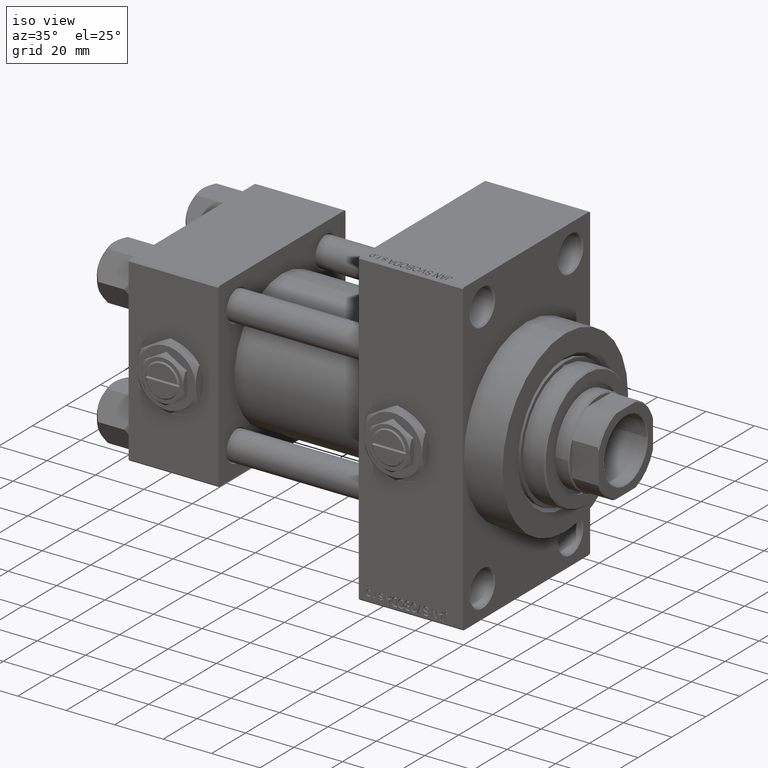
[diagram: clean part render]
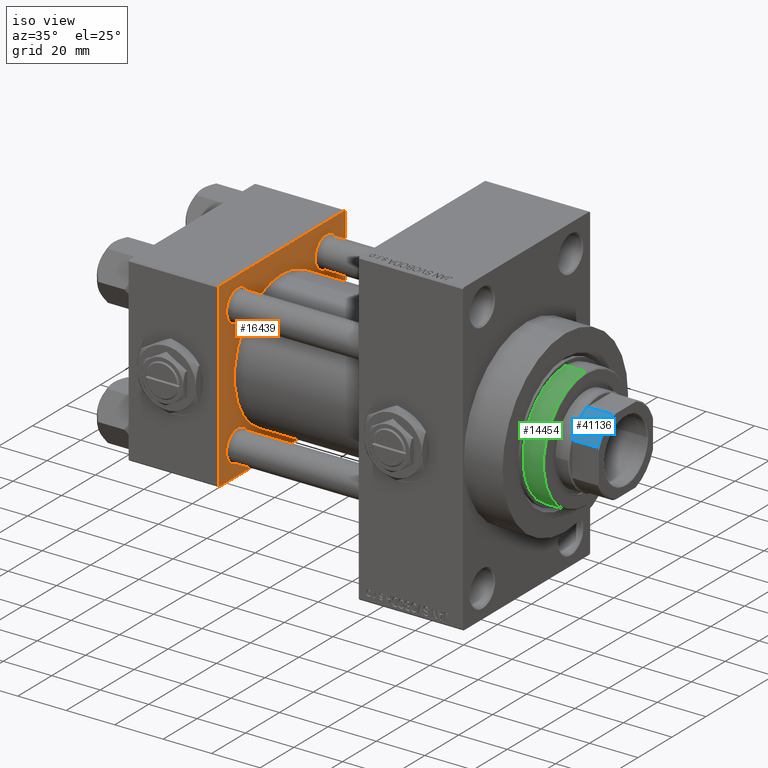
[diagram: same view with three faces highlighted in distinct colors, each labeled with its STEP entity id]
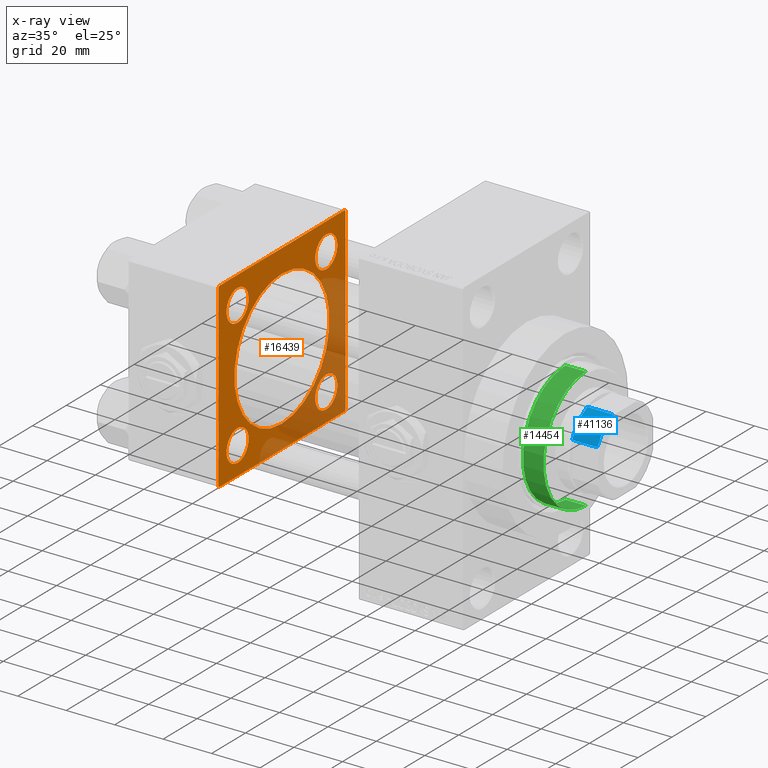
[diagram: x-ray of the same camera — body ghosted, the three highlighted faces saturated]
A machine part, iso view with three faces highlighted in distinct colors.
The next image is the same camera in x-ray (body ghosted, the three faces saturated) — at least one of them is partly hidden behind the body in this view.
Their STEP definitions:

[orange] entity #16439 — the highlighted planar face has unit normal (-1, 0, 0).
#188 = VECTOR ( 'NONE', #42562, 1000.000000000000114 ) ;
#349 = ORIENTED_EDGE ( 'NONE', *, *, #48649, .F. ) ;
#615 = CIRCLE ( 'NONE', #28632, 6.500000000000057732 ) ;
#841 = DIRECTION ( 'NONE',  ( 0.000000000000000000, 0.000000000000000000, -1.000000000000000000 ) ) ;
#1274 = VECTOR ( 'NONE', #2989, 1000.000000000000000 ) ;
#1501 = ORIENTED_EDGE ( 'NONE', *, *, #29821, .T. ) ;
#2338 = PLANE ( 'NONE',  #35518 ) ;
#2989 = DIRECTION ( 'NONE',  ( 0.000000000000000000, 0.7071067811865524577, -0.7071067811865426878 ) ) ;
#3256 = DIRECTION ( 'NONE',  ( 0.000000000000000000, 0.000000000000000000, 1.000000000000000000 ) ) ;
#3275 = EDGE_CURVE ( 'NONE', #8636, #25856, #7812, .T. ) ;
#3367 = AXIS2_PLACEMENT_3D ( 'NONE', #35919, #27649, #20608 ) ;
#3414 = CARTESIAN_POINT ( 'NONE',  ( 37.00000000000000000, -37.50000000000000711, 36.99999999999999289 ) ) ;
#3581 = EDGE_LOOP ( 'NONE', ( #37947, #5735 ) ) ;
#3976 = VERTEX_POINT ( 'NONE', #39563 ) ;
#4114 = AXIS2_PLACEMENT_3D ( 'NONE', #43243, #27953, #42992 ) ;
#4561 = VECTOR ( 'NONE', #26004, 1000.000000000000114 ) ;
#5201 = CARTESIAN_POINT ( 'NONE',  ( 37.00000000000000000, 26.14999999999999858, -19.65000000000000213 ) ) ;
#5233 = VERTEX_POINT ( 'NONE', #21932 ) ;
#5531 = DIRECTION ( 'NONE',  ( 0.000000000000000000, 0.000000000000000000, 1.000000000000000000 ) ) ;
#5735 = ORIENTED_EDGE ( 'NONE', *, *, #46528, .T. ) ;
#5844 = FACE_BOUND ( 'NONE', #29682, .T. ) ;
#5966 = EDGE_CURVE ( 'NONE', #44677, #3976, #18424, .T. ) ;
#6721 = VERTEX_POINT ( 'NONE', #44996 ) ;
#7447 = CARTESIAN_POINT ( 'NONE',  ( 37.00000000000000000, 37.49999999999999289, -36.99999999999998579 ) ) ;
#7812 = LINE ( 'NONE', #45657, #26301 ) ;
#7844 = VECTOR ( 'NONE', #841, 1000.000000000000000 ) ;
#8374 = ORIENTED_EDGE ( 'NONE', *, *, #15567, .T. ) ;
#8636 = VERTEX_POINT ( 'NONE', #3414 ) ;
#8877 = EDGE_CURVE ( 'NONE', #3976, #44677, #32141, .T. ) ;
#9349 = AXIS2_PLACEMENT_3D ( 'NONE', #38650, #15838, #16085 ) ;
#9375 = VERTEX_POINT ( 'NONE', #10285 ) ;
#9538 = DIRECTION ( 'NONE',  ( -1.000000000000000000, 0.000000000000000000, -0.000000000000000000 ) ) ;
#9742 = VERTEX_POINT ( 'NONE', #38458 ) ;
#9979 = EDGE_LOOP ( 'NONE', ( #8374, #25897 ) ) ;
#10285 = CARTESIAN_POINT ( 'NONE',  ( 37.00000000000000000, 36.99999999999997868, -37.50000000000000000 ) ) ;
#10391 = VECTOR ( 'NONE', #33431, 1000.000000000000000 ) ;
#10521 = EDGE_CURVE ( 'NONE', #16175, #42677, #13796, .T. ) ;
#10564 = CIRCLE ( 'NONE', #17757, 28.00000000000000000 ) ;
#11458 = CIRCLE ( 'NONE', #37858, 6.500000000000002665 ) ;
#11471 = DIRECTION ( 'NONE',  ( 0.000000000000000000, -1.000000000000000000, -9.251858538542972814E-17 ) ) ;
#11606 = ORIENTED_EDGE ( 'NONE', *, *, #33260, .F. ) ;
#11633 = LINE ( 'NONE', #30939, #7844 ) ;
#12046 = DIRECTION ( 'NONE',  ( 0.000000000000000000, 0.000000000000000000, 1.000000000000000000 ) ) ;
#13190 = CARTESIAN_POINT ( 'NONE',  ( 37.00000000000000000, 26.14999999999999858, 19.64999999999999858 ) ) ;
#13633 = LINE ( 'NONE', #21148, #10391 ) ;
#13796 = CIRCLE ( 'NONE', #20155, 6.500000000000057732 ) ;
#13882 = CARTESIAN_POINT ( 'NONE',  ( 37.00000000000000000, 0.000000000000000000, 0.000000000000000000 ) ) ;
#14261 = VECTOR ( 'NONE', #48582, 1000.000000000000114 ) ;
#15115 = EDGE_LOOP ( 'NONE', ( #45945, #16141 ) ) ;
#15567 = EDGE_CURVE ( 'NONE', #6721, #23777, #11458, .T. ) ;
#15633 = DIRECTION ( 'NONE',  ( 1.000000000000000000, -0.000000000000000000, 0.000000000000000000 ) ) ;
#15838 = DIRECTION ( 'NONE',  ( 1.000000000000000000, -0.000000000000000000, 0.000000000000000000 ) ) ;
#16085 = DIRECTION ( 'NONE',  ( 0.000000000000000000, 0.000000000000000000, 1.000000000000000000 ) ) ;
#16141 = ORIENTED_EDGE ( 'NONE', *, *, #8877, .T. ) ;
#16175 = VERTEX_POINT ( 'NONE', #36493 ) ;
#16439 = ADVANCED_FACE ( 'NONE', ( #40431, #28651, #44917, #21135, #5844, #48205 ), #2338, .F. ) ;
#16759 = EDGE_CURVE ( 'NONE', #35801, #47975, #49126, .T. ) ;
#16883 = ORIENTED_EDGE ( 'NONE', *, *, #10521, .T. ) ;
#17509 = CARTESIAN_POINT ( 'NONE',  ( 37.00000000000000000, -26.14999999999999147, -26.15000000000000924 ) ) ;
#17624 = DIRECTION ( 'NONE',  ( 0.000000000000000000, 0.000000000000000000, 1.000000000000000000 ) ) ;
#17757 = AXIS2_PLACEMENT_3D ( 'NONE', #41200, #15633, #26903 ) ;
#17850 = CARTESIAN_POINT ( 'NONE',  ( 37.00000000000000000, -26.14999999999999147, 19.64999999999994529 ) ) ;
#17922 = VERTEX_POINT ( 'NONE', #37607 ) ;
#18304 = CARTESIAN_POINT ( 'NONE',  ( 37.00000000000000000, -26.14999999999999147, 26.15000000000000924 ) ) ;
#18424 = CIRCLE ( 'NONE', #45609, 6.500000000000064837 ) ;
#18577 = CIRCLE ( 'NONE', #3367, 6.500000000000002665 ) ;
#19041 = DIRECTION ( 'NONE',  ( -1.000000000000000000, 0.000000000000000000, -0.000000000000000000 ) ) ;
#19785 = EDGE_LOOP ( 'NONE', ( #349, #21759, #11606, #1501, #42906, #39177, #26904, #23476 ) ) ;
#20155 = AXIS2_PLACEMENT_3D ( 'NONE', #17509, #32808, #48079 ) ;
#20264 = CARTESIAN_POINT ( 'NONE',  ( 37.00000000000000000, 26.14999999999999858, 32.65000000000001279 ) ) ;
#20365 = EDGE_LOOP ( 'NONE', ( #16883, #39001 ) ) ;
#20608 = DIRECTION ( 'NONE',  ( 0.000000000000000000, 0.000000000000000000, 1.000000000000000000 ) ) ;
#20773 = LINE ( 'NONE', #36079, #14261 ) ;
#21135 = FACE_BOUND ( 'NONE', #3581, .T. ) ;
#21148 = CARTESIAN_POINT ( 'NONE',  ( 37.00000000000000000, 37.49999999999999289, 37.50000000000000000 ) ) ;
#21759 = ORIENTED_EDGE ( 'NONE', *, *, #26109, .T. ) ;
#21932 = CARTESIAN_POINT ( 'NONE',  ( 37.00000000000000000, 37.49999999999999289, -36.99999999999998579 ) ) ;
#22704 = CARTESIAN_POINT ( 'NONE',  ( 37.00000000000000000, 36.99999999999999289, 37.50000000000000000 ) ) ;
#23476 = ORIENTED_EDGE ( 'NONE', *, *, #24792, .T. ) ;
#23777 = VERTEX_POINT ( 'NONE', #5201 ) ;
#24792 = EDGE_CURVE ( 'NONE', #25856, #17922, #28570, .T. ) ;
#25856 = VERTEX_POINT ( 'NONE', #45842 ) ;
#25897 = ORIENTED_EDGE ( 'NONE', *, *, #39085, .T. ) ;
#26004 = DIRECTION ( 'NONE',  ( -0.000000000000000000, 0.7071067811865474617, 0.7071067811865474617 ) ) ;
#26109 = EDGE_CURVE ( 'NONE', #9375, #5233, #38520, .T. ) ;
#26132 = ORIENTED_EDGE ( 'NONE', *, *, #26420, .F. ) ;
#26301 = VECTOR ( 'NONE', #30891, 1000.000000000000000 ) ;
#26420 = EDGE_CURVE ( 'NONE', #32673, #37801, #43763, .T. ) ;
#26903 = DIRECTION ( 'NONE',  ( 0.000000000000000000, 0.000000000000000000, 1.000000000000000000 ) ) ;
#26904 = ORIENTED_EDGE ( 'NONE', *, *, #3275, .T. ) ;
#27649 = DIRECTION ( 'NONE',  ( -1.000000000000000000, 0.000000000000000000, -0.000000000000000000 ) ) ;
#27953 = DIRECTION ( 'NONE',  ( -1.000000000000000000, 0.000000000000000000, -0.000000000000000000 ) ) ;
#28431 = ORIENTED_EDGE ( 'NONE', *, *, #46493, .F. ) ;
#28564 = CARTESIAN_POINT ( 'NONE',  ( 37.00000000000000000, 8.269258236473776482E-16, -28.00000000000000000 ) ) ;
#28570 = LINE ( 'NONE', #40093, #1274 ) ;
#28632 = AXIS2_PLACEMENT_3D ( 'NONE', #30307, #37573, #34321 ) ;
#28651 = FACE_BOUND ( 'NONE', #9979, .T. ) ;
#29162 = DIRECTION ( 'NONE',  ( -0.000000000000000000, 0.000000000000000000, 1.000000000000000000 ) ) ;
#29682 = EDGE_LOOP ( 'NONE', ( #28431, #26132 ) ) ;
#29821 = EDGE_CURVE ( 'NONE', #9742, #46219, #20773, .T. ) ;
#30307 = CARTESIAN_POINT ( 'NONE',  ( 37.00000000000000000, -26.14999999999999147, -26.15000000000000924 ) ) ;
#30463 = AXIS2_PLACEMENT_3D ( 'NONE', #43595, #47112, #12046 ) ;
#30520 = CARTESIAN_POINT ( 'NONE',  ( 37.00000000000000000, 37.49999999999999289, -37.50000000000000000 ) ) ;
#30891 = DIRECTION ( 'NONE',  ( 0.000000000000000000, 9.251858538542971581E-17, -1.000000000000000000 ) ) ;
#30939 = CARTESIAN_POINT ( 'NONE',  ( 37.00000000000000000, 37.49999999999999289, 37.50000000000000000 ) ) ;
#32141 = CIRCLE ( 'NONE', #4114, 6.500000000000064837 ) ;
#32673 = VERTEX_POINT ( 'NONE', #28564 ) ;
#32721 = EDGE_CURVE ( 'NONE', #42677, #16175, #615, .T. ) ;
#32808 = DIRECTION ( 'NONE',  ( -1.000000000000000000, 0.000000000000000000, -0.000000000000000000 ) ) ;
#33260 = EDGE_CURVE ( 'NONE', #9742, #5233, #11633, .T. ) ;
#33431 = DIRECTION ( 'NONE',  ( 0.000000000000000000, -1.000000000000000000, -9.251858538542971581E-17 ) ) ;
#34321 = DIRECTION ( 'NONE',  ( 0.000000000000000000, 0.000000000000000000, 1.000000000000000000 ) ) ;
#34572 = LINE ( 'NONE', #46318, #188 ) ;
#34972 = VERTEX_POINT ( 'NONE', #43272 ) ;
#35518 = AXIS2_PLACEMENT_3D ( 'NONE', #13882, #40922, #29162 ) ;
#35801 = VERTEX_POINT ( 'NONE', #13190 ) ;
#35919 = CARTESIAN_POINT ( 'NONE',  ( 37.00000000000000000, 26.14999999999999858, 26.15000000000000213 ) ) ;
#36079 = CARTESIAN_POINT ( 'NONE',  ( 37.00000000000000000, 36.99999999999999289, 37.50000000000000000 ) ) ;
#36493 = CARTESIAN_POINT ( 'NONE',  ( 37.00000000000000000, -26.14999999999999147, -32.65000000000006963 ) ) ;
#36623 = CARTESIAN_POINT ( 'NONE',  ( 37.00000000000000000, 26.14999999999999858, 26.15000000000000213 ) ) ;
#37573 = DIRECTION ( 'NONE',  ( -1.000000000000000000, 0.000000000000000000, -0.000000000000000000 ) ) ;
#37607 = CARTESIAN_POINT ( 'NONE',  ( 37.00000000000000000, -37.00000000000002132, -37.50000000000000711 ) ) ;
#37801 = VERTEX_POINT ( 'NONE', #46978 ) ;
#37858 = AXIS2_PLACEMENT_3D ( 'NONE', #43682, #47941, #17624 ) ;
#37870 = EDGE_CURVE ( 'NONE', #46219, #34972, #13633, .T. ) ;
#37947 = ORIENTED_EDGE ( 'NONE', *, *, #16759, .T. ) ;
#38458 = CARTESIAN_POINT ( 'NONE',  ( 37.00000000000000000, 37.49999999999999289, 37.00000000000000000 ) ) ;
#38520 = LINE ( 'NONE', #7447, #4561 ) ;
#38650 = CARTESIAN_POINT ( 'NONE',  ( 37.00000000000000000, -2.602085213965210642E-15, 0.000000000000000000 ) ) ;
#39001 = ORIENTED_EDGE ( 'NONE', *, *, #32721, .T. ) ;
#39085 = EDGE_CURVE ( 'NONE', #23777, #6721, #46445, .T. ) ;
#39177 = ORIENTED_EDGE ( 'NONE', *, *, #47262, .T. ) ;
#39563 = CARTESIAN_POINT ( 'NONE',  ( 37.00000000000000000, -26.14999999999999147, 32.65000000000007674 ) ) ;
#40093 = CARTESIAN_POINT ( 'NONE',  ( 37.00000000000000000, -37.00000000000002132, -37.50000000000000711 ) ) ;
#40431 = FACE_BOUND ( 'NONE', #20365, .T. ) ;
#40922 = DIRECTION ( 'NONE',  ( -1.000000000000000000, 0.000000000000000000, -0.000000000000000000 ) ) ;
#41200 = CARTESIAN_POINT ( 'NONE',  ( 37.00000000000000000, -2.602085213965210642E-15, 0.000000000000000000 ) ) ;
#42562 = DIRECTION ( 'NONE',  ( -0.000000000000000000, -0.7071067811865474617, -0.7071067811865474617 ) ) ;
#42677 = VERTEX_POINT ( 'NONE', #44074 ) ;
#42906 = ORIENTED_EDGE ( 'NONE', *, *, #37870, .T. ) ;
#42992 = DIRECTION ( 'NONE',  ( 0.000000000000000000, 0.000000000000000000, 1.000000000000000000 ) ) ;
#43243 = CARTESIAN_POINT ( 'NONE',  ( 37.00000000000000000, -26.14999999999999147, 26.15000000000000924 ) ) ;
#43272 = CARTESIAN_POINT ( 'NONE',  ( 37.00000000000000000, -37.00000000000000711, 37.49999999999999289 ) ) ;
#43595 = CARTESIAN_POINT ( 'NONE',  ( 37.00000000000000000, 26.14999999999999858, -26.15000000000000213 ) ) ;
#43682 = CARTESIAN_POINT ( 'NONE',  ( 37.00000000000000000, 26.14999999999999858, -26.15000000000000213 ) ) ;
#43763 = CIRCLE ( 'NONE', #9349, 28.00000000000000000 ) ;
#44074 = CARTESIAN_POINT ( 'NONE',  ( 37.00000000000000000, -26.14999999999999147, -19.64999999999995239 ) ) ;
#44303 = VECTOR ( 'NONE', #11471, 1000.000000000000000 ) ;
#44677 = VERTEX_POINT ( 'NONE', #17850 ) ;
#44917 = FACE_BOUND ( 'NONE', #15115, .T. ) ;
#44996 = CARTESIAN_POINT ( 'NONE',  ( 37.00000000000000000, 26.14999999999999858, -32.65000000000000568 ) ) ;
#45543 = LINE ( 'NONE', #30520, #44303 ) ;
#45609 = AXIS2_PLACEMENT_3D ( 'NONE', #18304, #19041, #3256 ) ;
#45657 = CARTESIAN_POINT ( 'NONE',  ( 37.00000000000000000, -37.50000000000000711, 37.49999999999999289 ) ) ;
#45842 = CARTESIAN_POINT ( 'NONE',  ( 37.00000000000000000, -37.50000000000000000, -37.00000000000003553 ) ) ;
#45900 = AXIS2_PLACEMENT_3D ( 'NONE', #36623, #9538, #5531 ) ;
#45945 = ORIENTED_EDGE ( 'NONE', *, *, #5966, .T. ) ;
#46219 = VERTEX_POINT ( 'NONE', #22704 ) ;
#46318 = CARTESIAN_POINT ( 'NONE',  ( 37.00000000000000000, -37.50000000000000711, 36.99999999999999289 ) ) ;
#46445 = CIRCLE ( 'NONE', #30463, 6.500000000000002665 ) ;
#46493 = EDGE_CURVE ( 'NONE', #37801, #32673, #10564, .T. ) ;
#46528 = EDGE_CURVE ( 'NONE', #47975, #35801, #18577, .T. ) ;
#46978 = CARTESIAN_POINT ( 'NONE',  ( 37.00000000000000000, -2.602085213965210642E-15, 28.00000000000000000 ) ) ;
#47112 = DIRECTION ( 'NONE',  ( -1.000000000000000000, 0.000000000000000000, -0.000000000000000000 ) ) ;
#47262 = EDGE_CURVE ( 'NONE', #34972, #8636, #34572, .T. ) ;
#47941 = DIRECTION ( 'NONE',  ( -1.000000000000000000, 0.000000000000000000, -0.000000000000000000 ) ) ;
#47975 = VERTEX_POINT ( 'NONE', #20264 ) ;
#48079 = DIRECTION ( 'NONE',  ( 0.000000000000000000, 0.000000000000000000, 1.000000000000000000 ) ) ;
#48205 = FACE_OUTER_BOUND ( 'NONE', #19785, .T. ) ;
#48582 = DIRECTION ( 'NONE',  ( 0.000000000000000000, -0.7071067811865474617, 0.7071067811865474617 ) ) ;
#48649 = EDGE_CURVE ( 'NONE', #9375, #17922, #45543, .T. ) ;
#49126 = CIRCLE ( 'NONE', #45900, 6.500000000000002665 ) ;

[blue] entity #41136 — the highlighted cylindrical surface (partial cylindrical patch) has radius 17.5 mm, axis along (1, 0, 0).
#785 = EDGE_CURVE ( 'NONE', #47036, #20100, #41273, .T. ) ;
#3090 = VERTEX_POINT ( 'NONE', #12871 ) ;
#3102 = EDGE_CURVE ( 'NONE', #42760, #47036, #34337, .T. ) ;
#3118 = AXIS2_PLACEMENT_3D ( 'NONE', #43452, #28898, #5585 ) ;
#4753 = CARTESIAN_POINT ( 'NONE',  ( 7.088723439378915359, -16.00000000000000000, 131.0000000000000284 ) ) ;
#4778 = FACE_OUTER_BOUND ( 'NONE', #49270, .T. ) ;
#5506 = CARTESIAN_POINT ( 'NONE',  ( 15.99999999999999645, -7.088723439378925129, 131.0000000000000284 ) ) ;
#5585 = DIRECTION ( 'NONE',  ( 1.000000000000000000, 0.000000000000000000, 0.000000000000000000 ) ) ;
#8035 = DIRECTION ( 'NONE',  ( 1.000000000000000000, 0.000000000000000000, 0.000000000000000000 ) ) ;
#8909 = CARTESIAN_POINT ( 'NONE',  ( 7.088723439378915359, -16.00000000000000000, -0.001000000000001000089 ) ) ;
#9122 = CIRCLE ( 'NONE', #35548, 17.50000000000000000 ) ;
#9186 = DIRECTION ( 'NONE',  ( 1.000000000000000000, 0.000000000000000000, 0.000000000000000000 ) ) ;
#10241 = VECTOR ( 'NONE', #37518, 1000.000000000000000 ) ;
#12347 = ORIENTED_EDGE ( 'NONE', *, *, #24178, .F. ) ;
#12871 = CARTESIAN_POINT ( 'NONE',  ( 7.088723439378915359, -16.00000000000000000, 141.5000000000000284 ) ) ;
#14217 = CARTESIAN_POINT ( 'NONE',  ( 15.99999999999999645, -7.088723439378925129, -0.001000000000001000089 ) ) ;
#14629 = ORIENTED_EDGE ( 'NONE', *, *, #785, .T. ) ;
#17203 = DIRECTION ( 'NONE',  ( -0.000000000000000000, -0.000000000000000000, -1.000000000000000000 ) ) ;
#17436 = EDGE_CURVE ( 'NONE', #20100, #3090, #9122, .T. ) ;
#19390 = ORIENTED_EDGE ( 'NONE', *, *, #3102, .T. ) ;
#20100 = VERTEX_POINT ( 'NONE', #28762 ) ;
#22874 = VECTOR ( 'NONE', #35981, 1000.000000000000000 ) ;
#24178 = EDGE_CURVE ( 'NONE', #42760, #3090, #35745, .T. ) ;
#25694 = AXIS2_PLACEMENT_3D ( 'NONE', #35371, #42369, #8035 ) ;
#28762 = CARTESIAN_POINT ( 'NONE',  ( 15.99999999999999645, -7.088723439378925129, 141.5000000000000284 ) ) ;
#28898 = DIRECTION ( 'NONE',  ( 0.000000000000000000, 0.000000000000000000, 1.000000000000000000 ) ) ;
#32748 = CARTESIAN_POINT ( 'NONE',  ( 0.000000000000000000, 0.000000000000000000, 141.5000000000000284 ) ) ;
#34337 = CIRCLE ( 'NONE', #3118, 17.50000000000003908 ) ;
#35371 = CARTESIAN_POINT ( 'NONE',  ( 0.000000000000000000, 0.000000000000000000, -0.001000000000001000089 ) ) ;
#35548 = AXIS2_PLACEMENT_3D ( 'NONE', #32748, #17203, #9186 ) ;
#35745 = LINE ( 'NONE', #8909, #22874 ) ;
#35981 = DIRECTION ( 'NONE',  ( -0.000000000000000000, -0.000000000000000000, 1.000000000000000000 ) ) ;
#37518 = DIRECTION ( 'NONE',  ( -0.000000000000000000, -0.000000000000000000, 1.000000000000000000 ) ) ;
#40932 = ORIENTED_EDGE ( 'NONE', *, *, #17436, .T. ) ;
#41136 = ADVANCED_FACE ( 'NONE', ( #4778 ), #46130, .T. ) ;
#41273 = LINE ( 'NONE', #14217, #10241 ) ;
#42369 = DIRECTION ( 'NONE',  ( -0.000000000000000000, -0.000000000000000000, 1.000000000000000000 ) ) ;
#42760 = VERTEX_POINT ( 'NONE', #4753 ) ;
#43452 = CARTESIAN_POINT ( 'NONE',  ( 0.000000000000000000, 0.000000000000000000, 131.0000000000000000 ) ) ;
#46130 = CYLINDRICAL_SURFACE ( 'NONE', #25694, 17.50000000000000000 ) ;
#47036 = VERTEX_POINT ( 'NONE', #5506 ) ;
#49270 = EDGE_LOOP ( 'NONE', ( #14629, #40932, #12347, #19390 ) ) ;

[green] entity #14454 — the highlighted cylindrical surface (partial cylindrical patch) has radius 25 mm, axis along (-1, 0, 0).
#2265 = DIRECTION ( 'NONE',  ( 1.000000000000000000, 0.000000000000000000, 0.000000000000000000 ) ) ;
#8185 = DIRECTION ( 'NONE',  ( -1.000000000000000000, 0.000000000000000000, 0.000000000000000000 ) ) ;
#8366 = CARTESIAN_POINT ( 'NONE',  ( -24.96969696969697239, 1.230541848742236155, 43.25999999999999801 ) ) ;
#8432 = DIRECTION ( 'NONE',  ( -0.000000000000000000, -0.000000000000000000, -1.000000000000000000 ) ) ;
#8658 = DIRECTION ( 'NONE',  ( 1.000000000000000000, 0.000000000000000000, 0.000000000000000000 ) ) ;
#8782 = VECTOR ( 'NONE', #24589, 1000.000000000000000 ) ;
#8995 = EDGE_CURVE ( 'NONE', #28616, #23659, #31362, .T. ) ;
#10112 = VERTEX_POINT ( 'NONE', #24581 ) ;
#11785 = VERTEX_POINT ( 'NONE', #32503 ) ;
#12860 = DIRECTION ( 'NONE',  ( 1.000000000000000000, 0.000000000000000000, 0.000000000000000000 ) ) ;
#13403 = CARTESIAN_POINT ( 'NONE',  ( 0.000000000000000000, 0.000000000000000000, 43.25999999999999801 ) ) ;
#13826 = AXIS2_PLACEMENT_3D ( 'NONE', #34464, #25942, #23154 ) ;
#13924 = ORIENTED_EDGE ( 'NONE', *, *, #8995, .T. ) ;
#14454 = ADVANCED_FACE ( 'NONE', ( #47014 ), #42512, .T. ) ;
#15011 = DIRECTION ( 'NONE',  ( -0.000000000000000000, -0.000000000000000000, -1.000000000000000000 ) ) ;
#15335 = EDGE_CURVE ( 'NONE', #43004, #26405, #29029, .T. ) ;
#15655 = ORIENTED_EDGE ( 'NONE', *, *, #31644, .T. ) ;
#16587 = VECTOR ( 'NONE', #15011, 1000.000000000000000 ) ;
#18120 = ORIENTED_EDGE ( 'NONE', *, *, #37282, .F. ) ;
#19265 = CARTESIAN_POINT ( 'NONE',  ( 25.00000000000000000, 3.061616997868383043E-15, 52.25999999999999801 ) ) ;
#19637 = ORIENTED_EDGE ( 'NONE', *, *, #20643, .T. ) ;
#20643 = EDGE_CURVE ( 'NONE', #26405, #28616, #22848, .T. ) ;
#20927 = AXIS2_PLACEMENT_3D ( 'NONE', #13403, #35977, #8658 ) ;
#22392 = ORIENTED_EDGE ( 'NONE', *, *, #15335, .T. ) ;
#22848 = CIRCLE ( 'NONE', #29268, 25.00000000000000000 ) ;
#22999 = CARTESIAN_POINT ( 'NONE',  ( -25.00000000000000000, 0.000000000000000000, 43.25999999999999801 ) ) ;
#23154 = DIRECTION ( 'NONE',  ( 1.000000000000000000, 0.000000000000000000, 0.000000000000000000 ) ) ;
#23638 = DIRECTION ( 'NONE',  ( 0.000000000000000000, 0.000000000000000000, 1.000000000000000000 ) ) ;
#23659 = VERTEX_POINT ( 'NONE', #22999 ) ;
#24581 = CARTESIAN_POINT ( 'NONE',  ( -25.00000000000000000, 0.000000000000000000, 51.76000000000001222 ) ) ;
#24589 = DIRECTION ( 'NONE',  ( -0.000000000000000000, -0.000000000000000000, -1.000000000000000000 ) ) ;
#25752 = EDGE_CURVE ( 'NONE', #10112, #11785, #46131, .T. ) ;
#25942 = DIRECTION ( 'NONE',  ( 0.000000000000000000, 0.000000000000000000, 1.000000000000000000 ) ) ;
#26134 = AXIS2_PLACEMENT_3D ( 'NONE', #36610, #29330, #2265 ) ;
#26405 = VERTEX_POINT ( 'NONE', #34903 ) ;
#26620 = AXIS2_PLACEMENT_3D ( 'NONE', #35014, #8432, #8185 ) ;
#26695 = EDGE_LOOP ( 'NONE', ( #40630, #15655, #22392, #19637, #13924, #18120 ) ) ;
#28616 = VERTEX_POINT ( 'NONE', #8366 ) ;
#29029 = CIRCLE ( 'NONE', #13826, 25.00000000000000000 ) ;
#29268 = AXIS2_PLACEMENT_3D ( 'NONE', #32164, #23638, #12860 ) ;
#29330 = DIRECTION ( 'NONE',  ( 0.000000000000000000, 0.000000000000000000, -1.000000000000000000 ) ) ;
#31362 = CIRCLE ( 'NONE', #20927, 25.00000000000000000 ) ;
#31644 = EDGE_CURVE ( 'NONE', #11785, #43004, #37826, .T. ) ;
#32164 = CARTESIAN_POINT ( 'NONE',  ( 0.000000000000000000, 0.000000000000000000, 43.25999999999999801 ) ) ;
#32503 = CARTESIAN_POINT ( 'NONE',  ( 25.00000000000000000, 3.061616997868383043E-15, 51.76000000000001222 ) ) ;
#33499 = CARTESIAN_POINT ( 'NONE',  ( 25.00000000000000000, 3.061616997868383043E-15, 43.25999999999999801 ) ) ;
#34464 = CARTESIAN_POINT ( 'NONE',  ( 0.000000000000000000, 0.000000000000000000, 43.25999999999999801 ) ) ;
#34903 = CARTESIAN_POINT ( 'NONE',  ( 24.96969696969697239, 1.230541848742238376, 43.25999999999999801 ) ) ;
#35014 = CARTESIAN_POINT ( 'NONE',  ( 0.000000000000000000, 0.000000000000000000, 52.25999999999999801 ) ) ;
#35977 = DIRECTION ( 'NONE',  ( 0.000000000000000000, 0.000000000000000000, 1.000000000000000000 ) ) ;
#36610 = CARTESIAN_POINT ( 'NONE',  ( 0.000000000000000000, 0.000000000000000000, 51.76000000000001222 ) ) ;
#37282 = EDGE_CURVE ( 'NONE', #10112, #23659, #48394, .T. ) ;
#37826 = LINE ( 'NONE', #19265, #16587 ) ;
#40379 = CARTESIAN_POINT ( 'NONE',  ( -25.00000000000000000, 0.000000000000000000, 52.25999999999999801 ) ) ;
#40630 = ORIENTED_EDGE ( 'NONE', *, *, #25752, .T. ) ;
#42512 = CYLINDRICAL_SURFACE ( 'NONE', #26620, 25.00000000000000000 ) ;
#43004 = VERTEX_POINT ( 'NONE', #33499 ) ;
#46131 = CIRCLE ( 'NONE', #26134, 25.00000000000000000 ) ;
#47014 = FACE_OUTER_BOUND ( 'NONE', #26695, .T. ) ;
#48394 = LINE ( 'NONE', #40379, #8782 ) ;